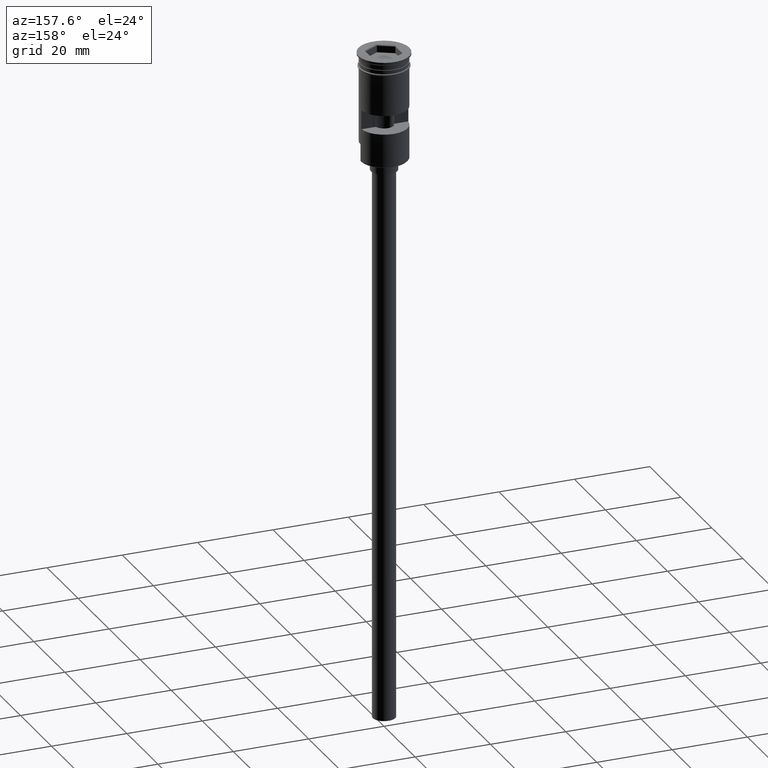
[diagram: clean part render]
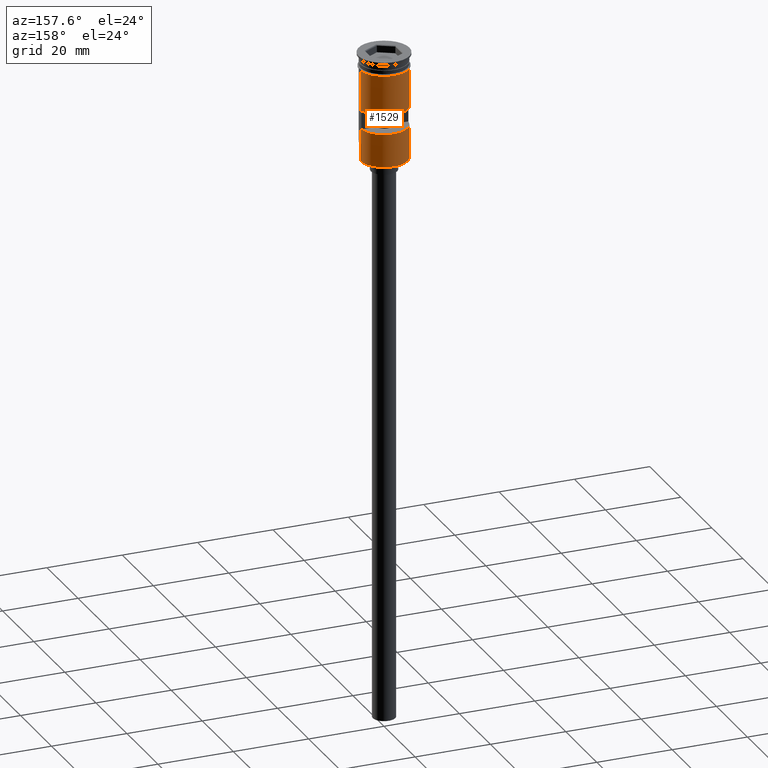
[diagram: same view with one face highlighted and labeled with its STEP entity id]
A machine part, auxiliary view. The second image highlights one B-rep face of the part: STEP entity #1529.
In plain terms, the highlighted cylindrical surface (edge-blend (fillet) strip) has radius 6.25 mm, axis along (-0, -0, 1).
Its self-contained STEP definition (entity closure, byte-faithful):
#2 = EDGE_CURVE ( 'NONE', #762, #1215, #785, .T. ) ;
#5 = DIRECTION ( 'NONE',  ( 1.000000000000000000, 0.000000000000000000, 0.000000000000000000 ) ) ;
#42 = EDGE_CURVE ( 'NONE', #134, #615, #424, .T. ) ;
#64 = CARTESIAN_POINT ( 'NONE',  ( -6.249999999999995559, 0.000000000000000000, -28.50000000000000000 ) ) ;
#67 = CARTESIAN_POINT ( 'NONE',  ( 6.249999999999995559, 7.654042494670950704E-16, -28.29999999999999716 ) ) ;
#124 = CARTESIAN_POINT ( 'NONE',  ( 6.221133337262590324, 0.5999999999999999778, 0.000000000000000000 ) ) ;
#126 = CARTESIAN_POINT ( 'NONE',  ( 0.000000000000000000, 0.000000000000000000, -14.49999999999999822 ) ) ;
#134 = VERTEX_POINT ( 'NONE', #67 ) ;
#149 = AXIS2_PLACEMENT_3D ( 'NONE', #989, #835, #5 ) ;
#178 = CARTESIAN_POINT ( 'NONE',  ( 0.000000000000000000, 0.000000000000000000, -19.50000000000000355 ) ) ;
#225 = AXIS2_PLACEMENT_3D ( 'NONE', #715, #1210, #1310 ) ;
#264 = ORIENTED_EDGE ( 'NONE', *, *, #1506, .F. ) ;
#292 = LINE ( 'NONE', #64, #840 ) ;
#335 = ORIENTED_EDGE ( 'NONE', *, *, #2, .T. ) ;
#346 = EDGE_CURVE ( 'NONE', #1371, #1436, #838, .T. ) ;
#356 = ORIENTED_EDGE ( 'NONE', *, *, #568, .T. ) ;
#374 = FACE_OUTER_BOUND ( 'NONE', #926, .T. ) ;
#424 = LINE ( 'NONE', #908, #481 ) ;
#450 = DIRECTION ( 'NONE',  ( -0.000000000000000000, -0.000000000000000000, 1.000000000000000000 ) ) ;
#481 = VECTOR ( 'NONE', #450, 1000.000000000000000 ) ;
#492 = LINE ( 'NONE', #861, #844 ) ;
#535 = DIRECTION ( 'NONE',  ( -0.000000000000000000, -0.000000000000000000, 1.000000000000000000 ) ) ;
#556 = CARTESIAN_POINT ( 'NONE',  ( 6.221133337262590324, 0.5999999999999999778, -14.49999999999999822 ) ) ;
#559 = DIRECTION ( 'NONE',  ( -1.000000000000000000, 0.000000000000000000, 0.000000000000000000 ) ) ;
#568 = EDGE_CURVE ( 'NONE', #134, #578, #587, .T. ) ;
#578 = VERTEX_POINT ( 'NONE', #1175 ) ;
#587 = CIRCLE ( 'NONE', #1311, 6.249999999999997335 ) ;
#594 = EDGE_CURVE ( 'NONE', #578, #762, #292, .T. ) ;
#610 = AXIS2_PLACEMENT_3D ( 'NONE', #178, #1418, #559 ) ;
#612 = CARTESIAN_POINT ( 'NONE',  ( -6.221133337262590324, 0.5999999999999999778, 0.000000000000000000 ) ) ;
#615 = VERTEX_POINT ( 'NONE', #1054 ) ;
#640 = CARTESIAN_POINT ( 'NONE',  ( 6.250000000000000000, 0.000000000000000000, -3.799999999999998490 ) ) ;
#679 = CARTESIAN_POINT ( 'NONE',  ( 6.221133337262590324, 0.5999999999999999778, -19.50000000000000355 ) ) ;
#715 = CARTESIAN_POINT ( 'NONE',  ( 0.000000000000000000, 0.000000000000000000, -3.799999999999998490 ) ) ;
#742 = DIRECTION ( 'NONE',  ( -0.000000000000000000, -0.000000000000000000, 1.000000000000000000 ) ) ;
#761 = VECTOR ( 'NONE', #1564, 1000.000000000000000 ) ;
#762 = VERTEX_POINT ( 'NONE', #1456 ) ;
#775 = CARTESIAN_POINT ( 'NONE',  ( 0.000000000000000000, 0.000000000000000000, -28.29999999999999716 ) ) ;
#778 = EDGE_CURVE ( 'NONE', #1220, #1215, #947, .T. ) ;
#785 = LINE ( 'NONE', #793, #761 ) ;
#793 = CARTESIAN_POINT ( 'NONE',  ( -6.249999999999997335, 7.654042494670954648E-16, 0.000000000000000000 ) ) ;
#800 = DIRECTION ( 'NONE',  ( -1.000000000000000000, 0.000000000000000000, 0.000000000000000000 ) ) ;
#835 = DIRECTION ( 'NONE',  ( -0.000000000000000000, -0.000000000000000000, 1.000000000000000000 ) ) ;
#838 = CIRCLE ( 'NONE', #1278, 6.249999999999997335 ) ;
#840 = VECTOR ( 'NONE', #535, 1000.000000000000000 ) ;
#844 = VECTOR ( 'NONE', #742, 1000.000000000000000 ) ;
#861 = CARTESIAN_POINT ( 'NONE',  ( 6.249999999999997335, 0.000000000000000000, 0.000000000000000000 ) ) ;
#863 = DIRECTION ( 'NONE',  ( -0.000000000000000000, -3.070307037127093647E-16, -1.000000000000000000 ) ) ;
#900 = ORIENTED_EDGE ( 'NONE', *, *, #42, .F. ) ;
#905 = ORIENTED_EDGE ( 'NONE', *, *, #948, .F. ) ;
#908 = CARTESIAN_POINT ( 'NONE',  ( 6.249999999999995559, 7.654042494670950704E-16, -28.50000000000000000 ) ) ;
#922 = CARTESIAN_POINT ( 'NONE',  ( -6.221133337262590324, 0.5999999999999999778, -14.49999999999999822 ) ) ;
#926 = EDGE_LOOP ( 'NONE', ( #957, #335, #1238, #264, #900, #356 ) ) ;
#936 = VERTEX_POINT ( 'NONE', #1272 ) ;
#947 = CIRCLE ( 'NONE', #225, 6.250000000000000000 ) ;
#948 = EDGE_CURVE ( 'NONE', #1344, #936, #1467, .T. ) ;
#957 = ORIENTED_EDGE ( 'NONE', *, *, #594, .T. ) ;
#969 = ORIENTED_EDGE ( 'NONE', *, *, #1495, .F. ) ;
#989 = CARTESIAN_POINT ( 'NONE',  ( 0.000000000000000000, 0.000000000000000000, 0.000000000000000000 ) ) ;
#1040 = DIRECTION ( 'NONE',  ( 0.000000000000000000, 0.000000000000000000, 1.000000000000000000 ) ) ;
#1054 = CARTESIAN_POINT ( 'NONE',  ( 6.249999999999997335, 7.654042494670953662E-16, -23.80000000000000782 ) ) ;
#1091 = CYLINDRICAL_SURFACE ( 'NONE', #149, 6.249999999999997335 ) ;
#1113 = LINE ( 'NONE', #124, #1287 ) ;
#1175 = CARTESIAN_POINT ( 'NONE',  ( -6.249999999999995559, 0.000000000000000000, -28.29999999999999716 ) ) ;
#1210 = DIRECTION ( 'NONE',  ( -0.000000000000000000, -0.000000000000000000, 1.000000000000000000 ) ) ;
#1215 = VERTEX_POINT ( 'NONE', #1288 ) ;
#1220 = VERTEX_POINT ( 'NONE', #640 ) ;
#1233 = FACE_BOUND ( 'NONE', #1340, .T. ) ;
#1238 = ORIENTED_EDGE ( 'NONE', *, *, #778, .F. ) ;
#1272 = CARTESIAN_POINT ( 'NONE',  ( -6.221133337262590324, 0.5999999999999999778, -19.50000000000000355 ) ) ;
#1278 = AXIS2_PLACEMENT_3D ( 'NONE', #126, #863, #1385 ) ;
#1287 = VECTOR ( 'NONE', #1472, 1000.000000000000000 ) ;
#1288 = CARTESIAN_POINT ( 'NONE',  ( -6.250000000000000000, 7.654042494670958593E-16, -3.799999999999998490 ) ) ;
#1310 = DIRECTION ( 'NONE',  ( 1.000000000000000000, 0.000000000000000000, 0.000000000000000000 ) ) ;
#1311 = AXIS2_PLACEMENT_3D ( 'NONE', #775, #1040, #800 ) ;
#1340 = EDGE_LOOP ( 'NONE', ( #969, #1497, #1407, #905 ) ) ;
#1344 = VERTEX_POINT ( 'NONE', #679 ) ;
#1363 = VECTOR ( 'NONE', #1481, 1000.000000000000000 ) ;
#1371 = VERTEX_POINT ( 'NONE', #922 ) ;
#1385 = DIRECTION ( 'NONE',  ( 0.000000000000000000, -1.000000000000000000, 2.775557561562892337E-16 ) ) ;
#1407 = ORIENTED_EDGE ( 'NONE', *, *, #1475, .F. ) ;
#1418 = DIRECTION ( 'NONE',  ( 0.000000000000000000, 0.000000000000000000, 1.000000000000000000 ) ) ;
#1436 = VERTEX_POINT ( 'NONE', #556 ) ;
#1456 = CARTESIAN_POINT ( 'NONE',  ( -6.249999999999995559, 0.000000000000000000, -23.80000000000000782 ) ) ;
#1467 = CIRCLE ( 'NONE', #610, 6.249999999999997335 ) ;
#1472 = DIRECTION ( 'NONE',  ( 0.000000000000000000, 0.000000000000000000, -1.000000000000000000 ) ) ;
#1475 = EDGE_CURVE ( 'NONE', #936, #1371, #1489, .T. ) ;
#1481 = DIRECTION ( 'NONE',  ( -0.000000000000000000, -0.000000000000000000, 1.000000000000000000 ) ) ;
#1489 = LINE ( 'NONE', #612, #1363 ) ;
#1495 = EDGE_CURVE ( 'NONE', #1436, #1344, #1113, .T. ) ;
#1497 = ORIENTED_EDGE ( 'NONE', *, *, #346, .F. ) ;
#1506 = EDGE_CURVE ( 'NONE', #615, #1220, #492, .T. ) ;
#1529 = ADVANCED_FACE ( 'NONE', ( #1233, #374 ), #1091, .T. ) ;
#1564 = DIRECTION ( 'NONE',  ( -0.000000000000000000, -0.000000000000000000, 1.000000000000000000 ) ) ;